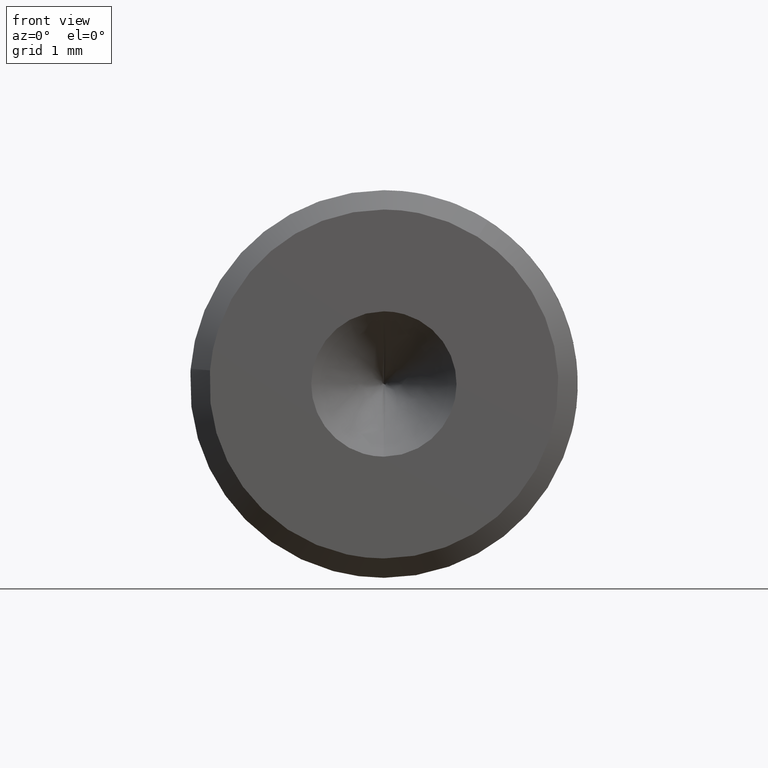
[diagram: clean part render]
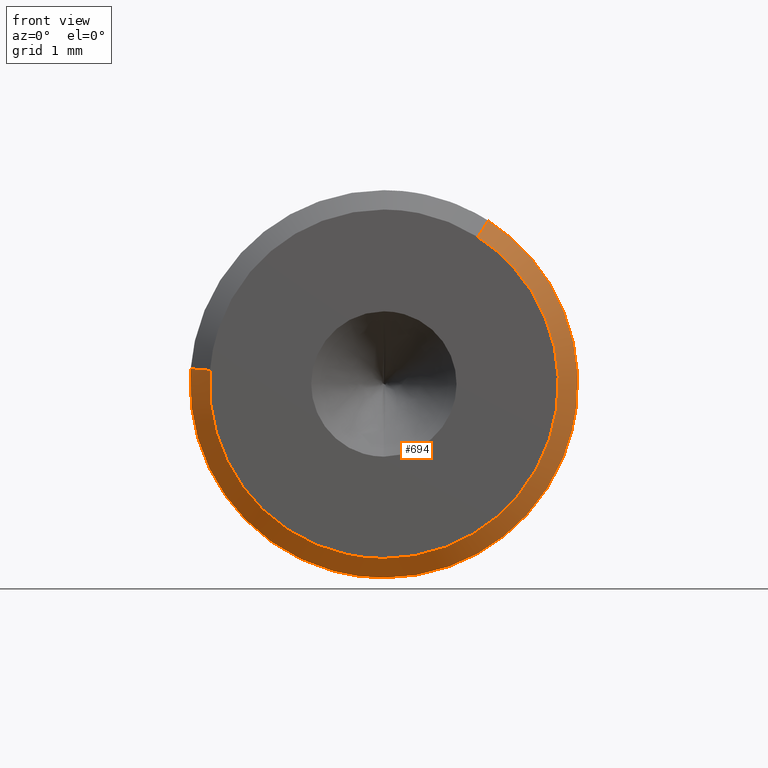
[diagram: same view with one face highlighted and labeled with its STEP entity id]
A machine part, front view. The second image highlights one B-rep face of the part: STEP entity #694.
In plain terms, the highlighted face is a freeform B-spline surface patch.
Its self-contained STEP definition (entity closure, byte-faithful):
#558=CARTESIAN_POINT('',(0.965441622938872,-0.005000100000001,1.513256023595539));
#559=CARTESIAN_POINT('',(1.874024559082568,-0.005000100000001,0.933589548942481));
#560=CARTESIAN_POINT('',(1.789465592210697,-0.005000100000001,-0.140833996410917));
#561=CARTESIAN_POINT('',(1.648631595799788,-0.005000100000001,-1.930299588621613));
#562=CARTESIAN_POINT('',(-0.140833996410910,-0.005000100000001,-1.789465592210704));
#563=CARTESIAN_POINT('',(-1.930299588621606,-0.005000100000001,-1.648631595799795));
#564=CARTESIAN_POINT('',(-1.789465592210697,-0.005000100000001,0.140833996410902));
#565=CARTESIAN_POINT('',(1.078458085991246,0.205129102500022,1.690400699582123));
#566=CARTESIAN_POINT('',(2.093401497375403,0.205129102500022,1.042877346627190));
#567=CARTESIAN_POINT('',(1.998943894347645,0.205129102500022,-0.157320296331818));
#568=CARTESIAN_POINT('',(1.841623598015834,0.205129102500022,-2.156264190679463));
#569=CARTESIAN_POINT('',(-0.157320296331811,0.205129102500022,-1.998943894347652));
#570=CARTESIAN_POINT('',(-2.156264190679456,0.205129102500022,-1.841623598015841));
#571=CARTESIAN_POINT('',(-1.998943894347645,0.205129102500022,0.157320296331803));
#579=(BOUNDED_SURFACE()B_SPLINE_SURFACE(2,1,((#558,#565),(#559,#566),(#560,#567),(#561,#568),(#562,#569),(#563,#570),(#564,#571)),.UNSPECIFIED.,.F.,.F.,.U.)B_SPLINE_SURFACE_WITH_KNOTS((3,2,2,3),(2,2),(0.0,2.259095945239803,5.581295864710102,8.903495784180400),(0.0,0.297165339322330),.UNSPECIFIED.)GEOMETRIC_REPRESENTATION_ITEM()RATIONAL_B_SPLINE_SURFACE(((0.872532871172386,0.872532871172386),(0.800832611206852,0.800832611206852),(1.0,1.0),(0.707106781186548,0.707106781186548),(1.0,1.0),(0.707106781186548,0.707106781186548),(1.0,1.0)))REPRESENTATION_ITEM('')SURFACE());
#580=CARTESIAN_POINT('',(1.986019150225537,0.200004000000021,-0.236067649068556));
#581=VERTEX_POINT('',#580);
#582=CARTESIAN_POINT('',(1.075701586892890,0.200004000000050,1.686080097728519));
#583=VERTEX_POINT('',#582);
#584=CARTESIAN_POINT('',(1.986019150225537,0.200004000000021,-0.236067649068556));
#585=CARTESIAN_POINT('',(2.000000000000000,0.200004000000021,-0.118447410387395));
#586=CARTESIAN_POINT('',(2.0,0.200004000000021,-7.277231E-015));
#587=CARTESIAN_POINT('',(2.000000000000000,0.200004000000021,1.096387312028698));
#588=CARTESIAN_POINT('',(1.075701586892890,0.200004000000050,1.686080097728518));
#596=(BOUNDED_CURVE()B_SPLINE_CURVE(2,(#584,#585,#586,#587,#588),.UNSPECIFIED.,.F.,.U.)B_SPLINE_CURVE_WITH_KNOTS((3,2,3),(0.229562613115593,0.250000000000000,0.407950112627485),.UNSPECIFIED.)CURVE()GEOMETRIC_REPRESENTATION_ITEM()RATIONAL_B_SPLINE_CURVE((0.956027027809680,0.976056111885160,1.0,0.814949932402354,0.863729296954884))REPRESENTATION_ITEM(''));
#597=EDGE_CURVE('',#581,#583,#596,.T.);
#598=ORIENTED_EDGE('',*,*,#597,.T.);
#599=CARTESIAN_POINT('',(0.968130890353736,8.237936E-014,1.517471244915091));
#600=VERTEX_POINT('',#599);
#601=CARTESIAN_POINT('',(0.968130890353736,8.237936E-014,1.517471244915091));
#602=CARTESIAN_POINT('',(1.075701586892890,0.200004000000050,1.686080097728519));
#603=QUASI_UNIFORM_CURVE('',1,(#601,#602),.UNSPECIFIED.,.F.,.U.);
#604=EDGE_CURVE('',#600,#583,#603,.T.);
#605=ORIENTED_EDGE('',*,*,#604,.F.);
#606=CARTESIAN_POINT('',(0.0,0.0,-1.799999000000008));
#607=VERTEX_POINT('',#606);
#608=CARTESIAN_POINT('',(0.0,0.0,-1.799999000000008));
#609=CARTESIAN_POINT('',(1.799999000000000,0.0,-1.799999000000008));
#610=CARTESIAN_POINT('',(1.799999000000000,0.0,-7.277231E-015));
#611=CARTESIAN_POINT('',(1.799999000000000,0.0,0.986748032630783));
#612=CARTESIAN_POINT('',(0.968130890353736,8.237936E-014,1.517471244915091));
#620=(BOUNDED_CURVE()B_SPLINE_CURVE(2,(#608,#609,#610,#611,#612),.UNSPECIFIED.,.F.,.U.)B_SPLINE_CURVE_WITH_KNOTS((3,2,3),(0.0,0.250000000000000,0.407950112627305),.UNSPECIFIED.)CURVE()GEOMETRIC_REPRESENTATION_ITEM()RATIONAL_B_SPLINE_CURVE((1.0,0.707106781186547,1.0,0.814949932402566,0.863729296954772))REPRESENTATION_ITEM(''));
#621=EDGE_CURVE('',#607,#600,#620,.T.);
#622=ORIENTED_EDGE('',*,*,#621,.F.);
#623=CARTESIAN_POINT('',(-1.794450203802471,4.389054E-013,0.141226293854398));
#624=VERTEX_POINT('',#623);
#625=CARTESIAN_POINT('',(-1.794450203802471,4.389054E-013,0.141226293854398));
#626=CARTESIAN_POINT('',(-1.799999000000000,0.0,0.070722153327051));
#627=CARTESIAN_POINT('',(-1.799999000000000,0.0,-7.277231E-015));
#628=CARTESIAN_POINT('',(-1.799999000000000,0.0,-1.799999000000008));
#629=CARTESIAN_POINT('',(0.0,0.0,-1.799999000000008));
#637=(BOUNDED_CURVE()B_SPLINE_CURVE(2,(#625,#626,#627,#628,#629),.UNSPECIFIED.,.F.,.U.)B_SPLINE_CURVE_WITH_KNOTS((3,2,3),(0.736331300632128,0.750000000000000,1.0),.UNSPECIFIED.)CURVE()GEOMETRIC_REPRESENTATION_ITEM()RATIONAL_B_SPLINE_CURVE((0.969723356170482,0.983986122580602,1.0,0.707106781186547,1.0))REPRESENTATION_ITEM(''));
#638=EDGE_CURVE('',#624,#607,#637,.T.);
#639=ORIENTED_EDGE('',*,*,#638,.F.);
#640=CARTESIAN_POINT('',(-1.993834667466275,0.200004000000070,0.156918191456064));
#641=VERTEX_POINT('',#640);
#642=CARTESIAN_POINT('',(-1.794450203802471,4.389054E-013,0.141226293854398));
#643=CARTESIAN_POINT('',(-1.993834667466275,0.200004000000070,0.156918191456064));
#644=QUASI_UNIFORM_CURVE('',1,(#642,#643),.UNSPECIFIED.,.F.,.U.);
#645=EDGE_CURVE('',#624,#641,#644,.T.);
#646=ORIENTED_EDGE('',*,*,#645,.T.);
#647=CARTESIAN_POINT('',(-1.996269638693471,0.200004000000021,0.122096394828707));
#648=VERTEX_POINT('',#647);
#649=CARTESIAN_POINT('',(-1.993834667466276,0.200004000000070,0.156918191456064));
#650=CARTESIAN_POINT('',(-1.995204125566377,0.200004000000021,0.139517576458017));
#651=CARTESIAN_POINT('',(-1.996269638693471,0.200004000000021,0.122096394828706));
#659=(BOUNDED_CURVE()B_SPLINE_CURVE(2,(#649,#650,#651),.UNSPECIFIED.,.F.,.U.)B_SPLINE_CURVE_WITH_KNOTS((3,3),(0.736331300632702,0.739333080526192),.UNSPECIFIED.)CURVE()GEOMETRIC_REPRESENTATION_ITEM()RATIONAL_B_SPLINE_CURVE((0.969723356171680,0.972855598990357,0.976072295178941))REPRESENTATION_ITEM(''));
#660=EDGE_CURVE('',#641,#648,#659,.T.);
#661=ORIENTED_EDGE('',*,*,#660,.T.);
#662=CARTESIAN_POINT('',(0.0,0.200004000000021,-2.000000000000008));
#663=VERTEX_POINT('',#662);
#664=CARTESIAN_POINT('',(-1.996269638693470,0.200004000000021,0.122096394828706));
#665=CARTESIAN_POINT('',(-2.000000000000000,0.200004000000021,0.061104840437647));
#666=CARTESIAN_POINT('',(-2.0,0.200004000000021,-7.277231E-015));
#667=CARTESIAN_POINT('',(-2.000000000000000,0.200004000000021,-2.000000000000008));
#668=CARTESIAN_POINT('',(0.0,0.200004000000021,-2.000000000000008));
#676=(BOUNDED_CURVE()B_SPLINE_CURVE(2,(#664,#665,#666,#667,#668),.UNSPECIFIED.,.F.,.U.)B_SPLINE_CURVE_WITH_KNOTS((3,2,3),(0.739333080526193,0.750000000000000,1.0),.UNSPECIFIED.)CURVE()GEOMETRIC_REPRESENTATION_ITEM()RATIONAL_B_SPLINE_CURVE((0.976072295178943,0.987502926481971,1.0,0.707106781186548,1.0))REPRESENTATION_ITEM(''));
#677=EDGE_CURVE('',#648,#663,#676,.T.);
#678=ORIENTED_EDGE('',*,*,#677,.T.);
#679=CARTESIAN_POINT('',(0.0,0.200004000000021,-2.000000000000008));
#680=CARTESIAN_POINT('',(1.776350529531005,0.200004000000021,-2.000000000000007));
#681=CARTESIAN_POINT('',(1.986019150225537,0.200004000000021,-0.236067649068556));
#689=(BOUNDED_CURVE()B_SPLINE_CURVE(2,(#679,#680,#681),.UNSPECIFIED.,.F.,.U.)B_SPLINE_CURVE_WITH_KNOTS((3,3),(0.0,0.229562613115593),.UNSPECIFIED.)CURVE()GEOMETRIC_REPRESENTATION_ITEM()RATIONAL_B_SPLINE_CURVE((1.0,0.731050669301387,0.956027027809680))REPRESENTATION_ITEM(''));
#690=EDGE_CURVE('',#663,#581,#689,.T.);
#691=ORIENTED_EDGE('',*,*,#690,.T.);
#692=EDGE_LOOP('',(#598,#605,#622,#639,#646,#661,#678,#691));
#693=FACE_OUTER_BOUND('',#692,.T.);
#694=ADVANCED_FACE('',(#693),#579,.T.);